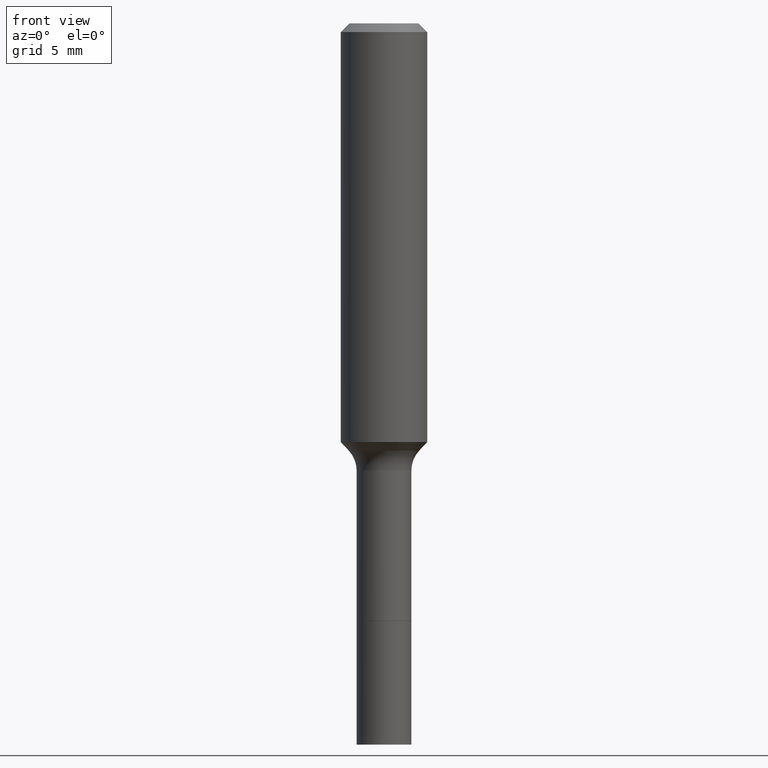
[diagram: clean part render]
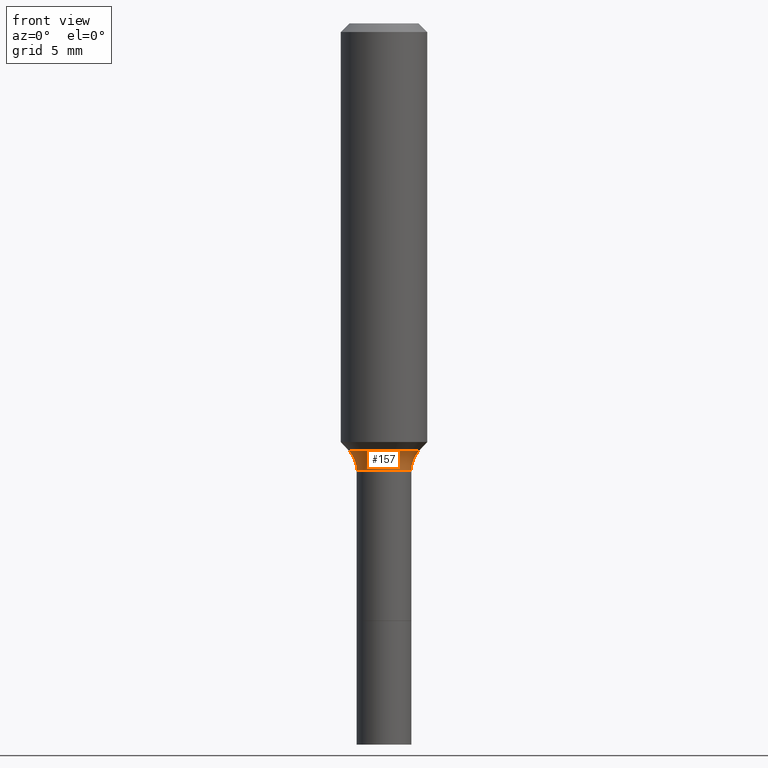
[diagram: same view with one face highlighted and labeled with its STEP entity id]
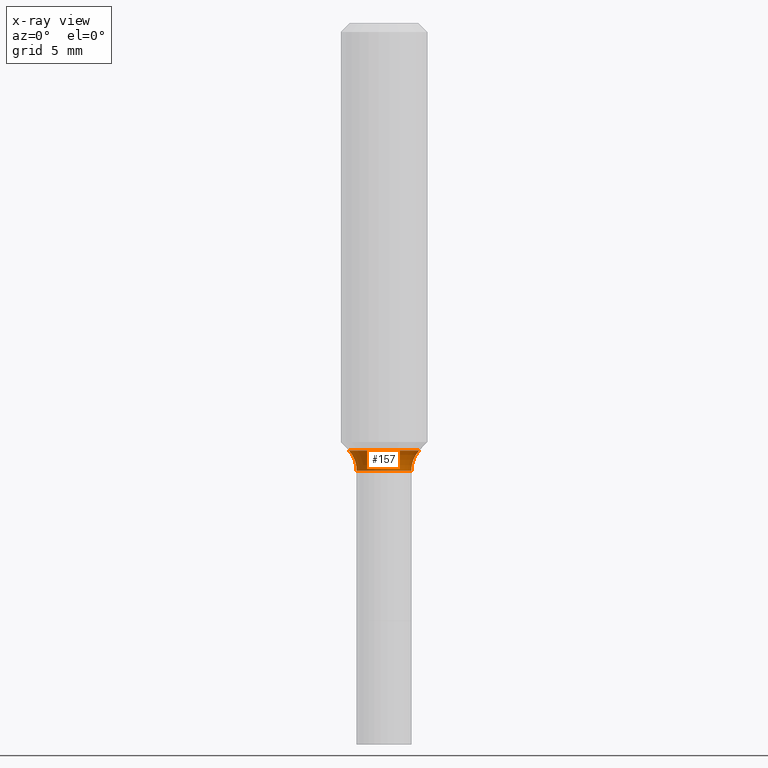
[diagram: x-ray of the same camera — body ghosted, the highlighted face saturated]
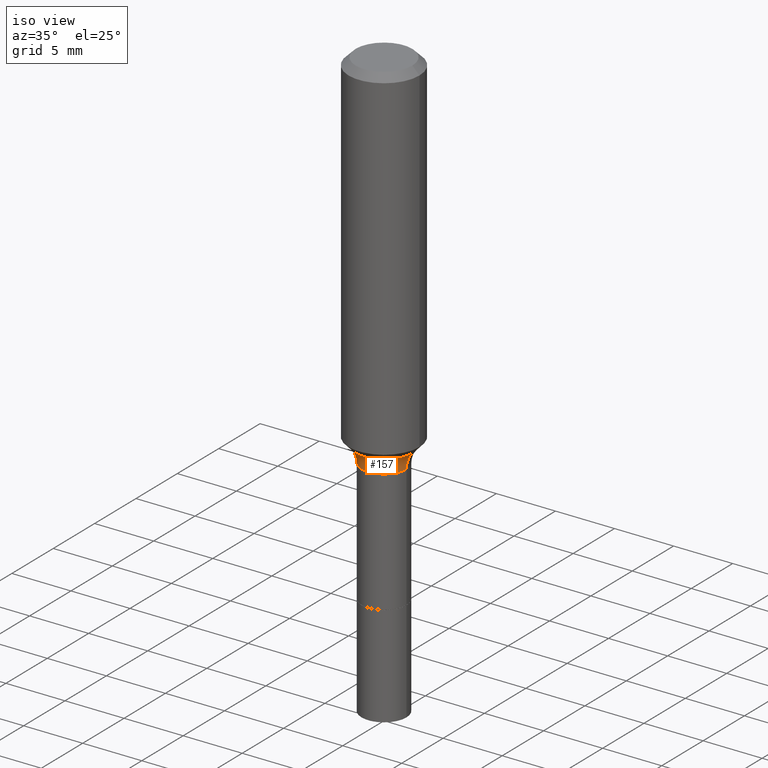
[diagram: same view with one face highlighted and labeled with its STEP entity id]
A machine part, front view. The second image highlights one B-rep face of the part: STEP entity #157.
The next image is the same camera in x-ray: the body ghosted, the highlighted face saturated — about 0% of this face is hidden behind the body in this view.
A second angle (iso view) of the same face is appended — the face is thin or edge-on in the first view.
In plain terms, the highlighted toroidal blend (fillet) surface has major radius 3.9306 mm and minor (blend) radius 2.032 mm.
Its self-contained STEP definition (entity closure, byte-faithful):
#11 = DIRECTION ( 'NONE',  ( 1.000000000000000000, -6.982962677686263555E-15, 0.000000000000000000 ) ) ;
#17 = DIRECTION ( 'NONE',  ( 1.000000000000000000, -6.982962677686265922E-15, 0.000000000000000000 ) ) ;
#19 = DIRECTION ( 'NONE',  ( -2.445468806185136597E-29, 3.491481338843145583E-15, 1.000000000000000000 ) ) ;
#26 = AXIS2_PLACEMENT_3D ( 'NONE', #92, #19, #252 ) ;
#31 = DIRECTION ( 'NONE',  ( -1.000000000000000000, 7.105427357600997914E-15, 0.000000000000000000 ) ) ;
#43 = EDGE_CURVE ( 'NONE', #201, #392, #518, .T. ) ;
#44 = AXIS2_PLACEMENT_3D ( 'NONE', #253, #410, #17 ) ;
#53 = VERTEX_POINT ( 'NONE', #256 ) ;
#60 = CARTESIAN_POINT ( 'NONE',  ( 2.984694677948959472E-29, -4.261352974058059028E-15, -1.220499999999999918 ) ) ;
#63 = EDGE_CURVE ( 'NONE', #392, #53, #385, .T. ) ;
#66 = TOROIDAL_SURFACE ( 'NONE', #333, 0.1547499999999999709, 0.08000000000000007105 ) ;
#90 = ORIENTED_EDGE ( 'NONE', *, *, #490, .T. ) ;
#92 = CARTESIAN_POINT ( 'NONE',  ( 2.851270220716778020E-29, -4.070858210275670967E-15, -1.165940131194999951 ) ) ;
#132 = ORIENTED_EDGE ( 'NONE', *, *, #43, .F. ) ;
#157 = ADVANCED_FACE ( 'NONE', ( #386 ), #66, .F. ) ;
#201 = VERTEX_POINT ( 'NONE', #305 ) ;
#206 = DIRECTION ( 'NONE',  ( -2.445468806185136597E-29, 3.491481338843145583E-15, 1.000000000000000000 ) ) ;
#252 = DIRECTION ( 'NONE',  ( 1.000000000000000000, -6.982962677686265922E-15, 0.000000000000000000 ) ) ;
#253 = CARTESIAN_POINT ( 'NONE',  ( 0.1547499999999999709, -5.341966448430008391E-15, -1.220499999999999918 ) ) ;
#256 = CARTESIAN_POINT ( 'NONE',  ( 0.07474999999999994149, -4.783329434215106738E-15, -1.220499999999999918 ) ) ;
#262 = CARTESIAN_POINT ( 'NONE',  ( -0.1547499999999999709, -3.161788090469304394E-15, -1.220499999999999918 ) ) ;
#275 = CARTESIAN_POINT ( 'NONE',  ( 0.09624170387046646069, -4.742910436440072201E-15, -1.165940131194999951 ) ) ;
#290 = VERTEX_POINT ( 'NONE', #482 ) ;
#305 = CARTESIAN_POINT ( 'NONE',  ( -0.09624170387046646069, -3.387019774652324153E-15, -1.165940131194999951 ) ) ;
#327 = CARTESIAN_POINT ( 'NONE',  ( 2.984694677948959472E-29, -4.261352974058059028E-15, -1.220499999999999918 ) ) ;
#333 = AXIS2_PLACEMENT_3D ( 'NONE', #60, #502, #420 ) ;
#348 = DIRECTION ( 'NONE',  ( 7.105427357601001859E-15, 1.000000000000000000, -3.491481338843145583E-15 ) ) ;
#379 = CIRCLE ( 'NONE', #494, 0.08000000000000007105 ) ;
#385 = CIRCLE ( 'NONE', #44, 0.08000000000000007105 ) ;
#386 = FACE_OUTER_BOUND ( 'NONE', #472, .T. ) ;
#392 = VERTEX_POINT ( 'NONE', #275 ) ;
#410 = DIRECTION ( 'NONE',  ( -6.982962677686266711E-15, -1.000000000000000000, 3.491481338843145583E-15 ) ) ;
#420 = DIRECTION ( 'NONE',  ( 1.000000000000000000, -6.982962677686266711E-15, 4.883557194083112901E-29 ) ) ;
#421 = EDGE_CURVE ( 'NONE', #290, #53, #487, .T. ) ;
#472 = EDGE_LOOP ( 'NONE', ( #132, #90, #483, #473 ) ) ;
#473 = ORIENTED_EDGE ( 'NONE', *, *, #63, .F. ) ;
#482 = CARTESIAN_POINT ( 'NONE',  ( -0.07474999999999994149, -4.445103083205517975E-15, -1.220499999999999918 ) ) ;
#483 = ORIENTED_EDGE ( 'NONE', *, *, #421, .T. ) ;
#487 = CIRCLE ( 'NONE', #503, 0.07474999999999994149 ) ;
#490 = EDGE_CURVE ( 'NONE', #201, #290, #379, .T. ) ;
#494 = AXIS2_PLACEMENT_3D ( 'NONE', #262, #348, #31 ) ;
#502 = DIRECTION ( 'NONE',  ( -2.445468806185136597E-29, 3.491481338843145583E-15, 1.000000000000000000 ) ) ;
#503 = AXIS2_PLACEMENT_3D ( 'NONE', #327, #206, #11 ) ;
#518 = CIRCLE ( 'NONE', #26, 0.09624170387046646069 ) ;